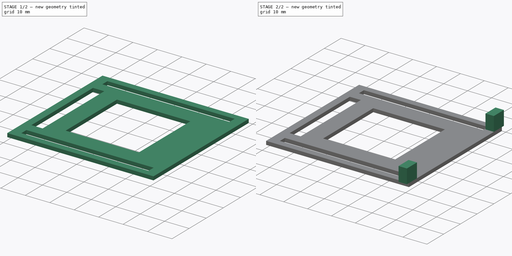
[diagram: build sequence overview — one tinted view per stage of 2, left to right]
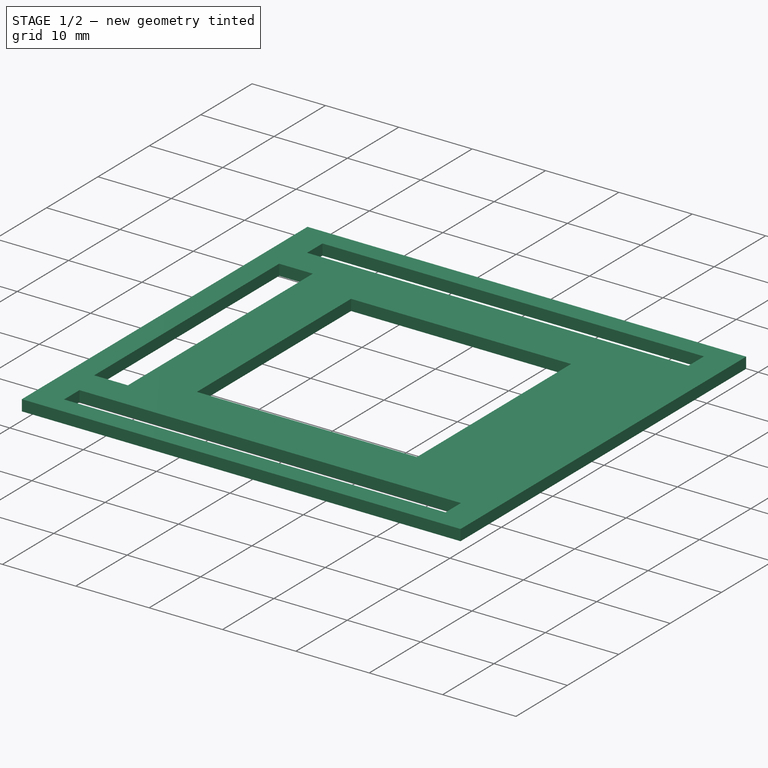
[diagram: stage 1 of 2 — iso view after this stage's code; geometry added in this stage tinted green]
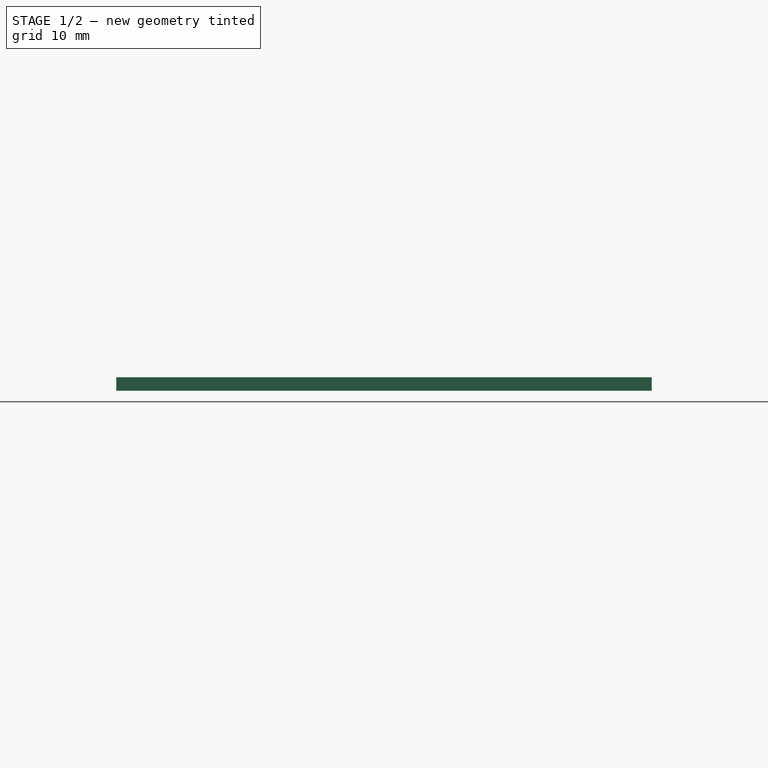
[diagram: stage 1 of 2 — front view after this stage's code; geometry added in this stage tinted green]
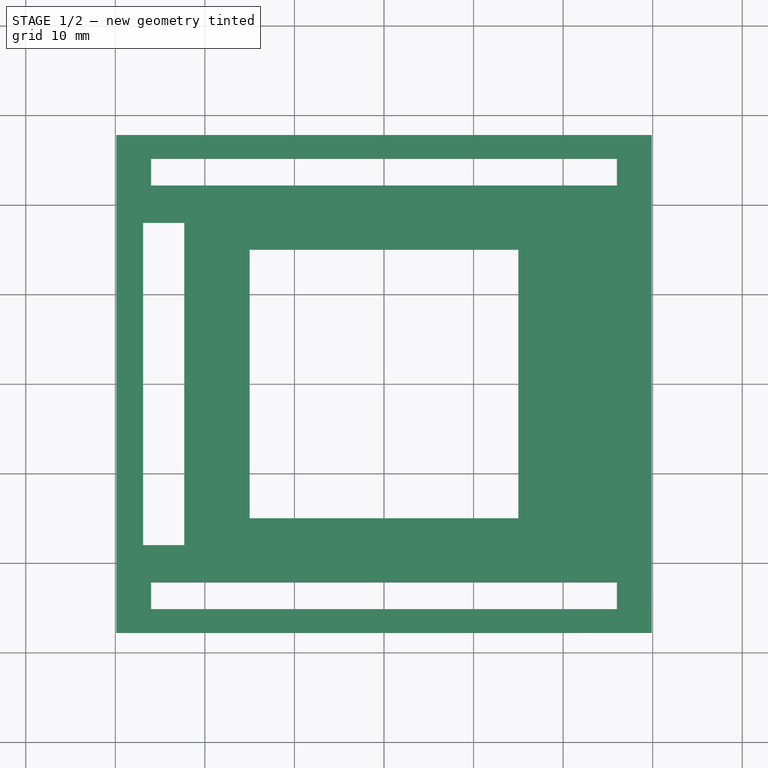
[diagram: stage 1 of 2 — top view after this stage's code; geometry added in this stage tinted green]
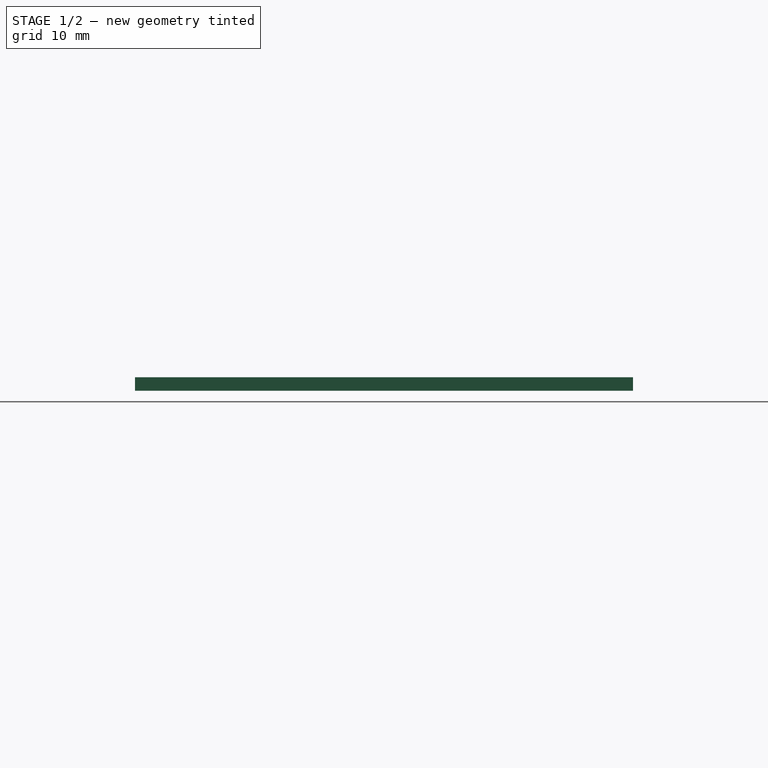
[diagram: stage 1 of 2 — right view after this stage's code; geometry added in this stage tinted green]
FCSTD DOCUMENT  (FreeCAD 0.16R4928 (Git))
Label: weather_station_holder_vetical
License: CreativeCommons Attribution-ShareAlike
LicenseURL: http://creativecommons.org/licenses/by-sa/4.0/
objects: Sketcher::SketchObject×4, PartDesign::Pad×2, App::MeasureDistance×2, PartDesign::Pocket×2
note: 12 computed .brp shape members not serialized (recipe doc carries the construction recipe); baked Part::Feature solids carry a one-line shape summary decoded from their .brp

FEATURE [Sketcher::SketchObject] Sketch
  Placement = pos=(0,0,0) rot=(-1,0,0;4.71239rad)
  sketch-geometry (4):
    g0: LineSegment StartX=-29.9 StartY=1.5 StartZ=0 EndX=29.9 EndY=1.5 EndZ=0
    g1: LineSegment StartX=29.9 StartY=1.5 StartZ=0 EndX=29.9 EndY=0 EndZ=0
    g2: LineSegment StartX=29.9 StartY=0 StartZ=0 EndX=-29.9 EndY=0 EndZ=0
    g3: LineSegment StartX=-29.9 StartY=0 StartZ=0 EndX=-29.9 EndY=1.5 EndZ=0
  constraints (11):
    c: Coincident(g0,g1)
    c: Coincident(g1,g2)
    c: Coincident(g2,g3)
    c: Coincident(g3,g0)
    c: Horizontal(g0)
    c: Horizontal(g2)
    c: Vertical(g1)
    c: Vertical(g3)
    c: Symmetric(g1,g2,g-1)
    c: DistanceX(g2) = -59.8
    c: DistanceY(g1) = -1.5
FEATURE [PartDesign::Pad] Pad
  Length = 55.6
  Length2 = 100
  Midplane = true
  Placement = pos=(0,0,0) rot=(-1,0,0;4.71239rad)
  Sketch = -> Sketch
  Type = 0
FEATURE [App::MeasureDistance] Distance  label="Distance: 59.800"
  Distance = 59.8
  P1 = (-29.9,-27.8,-3.31402e-06)
  P2 = (29.9,-27.8,-3.31402e-06)
FEATURE [App::MeasureDistance] Distance001  label="Distance: 55.600"
  Distance = 55.6
  P1 = (29.9,-27.8,0.0276028)
  P2 = (29.9,27.8,3.31402e-06)
FEATURE [Sketcher::SketchObject] Sketch002  label="Sketch001"
  ExternalGeometry = -> [Pad]
  Placement = pos=(0,0,1.5) rot=(0,0,1;3.14159rad)
  Support = -> Pad [Face1]
  sketch-geometry (16):
    g0: LineSegment StartX=-26 StartY=25.15 StartZ=0 EndX=26 EndY=25.15 EndZ=0
    g1: LineSegment StartX=26 StartY=25.15 StartZ=0 EndX=26 EndY=22.15 EndZ=0
    g2: LineSegment StartX=26 StartY=22.15 StartZ=0 EndX=-26 EndY=22.15 EndZ=0
    g3: LineSegment StartX=-26 StartY=22.15 StartZ=0 EndX=-26 EndY=25.15 EndZ=0
    g4: LineSegment StartX=-26 StartY=-22.15 StartZ=0 EndX=26 EndY=-22.15 EndZ=0
    g5: LineSegment StartX=26 StartY=-22.15 StartZ=0 EndX=26 EndY=-25.15 EndZ=0
    g6: LineSegment StartX=26 StartY=-25.15 StartZ=0 EndX=-26 EndY=-25.15 EndZ=0
    g7: LineSegment StartX=-26 StartY=-25.15 StartZ=0 EndX=-26 EndY=-22.15 EndZ=0
    g8: LineSegment StartX=-15 StartY=15 StartZ=0 EndX=15 EndY=15 EndZ=0
    g9: LineSegment StartX=15 StartY=15 StartZ=0 EndX=15 EndY=-15 EndZ=0
    g10: LineSegment StartX=15 StartY=-15 StartZ=0 EndX=-15 EndY=-15 EndZ=0
    g11: LineSegment StartX=-15 StartY=-15 StartZ=0 EndX=-15 EndY=15 EndZ=0
    g12: LineSegment StartX=22.3 StartY=18 StartZ=0 EndX=26.9 EndY=18 EndZ=0
    g13: LineSegment StartX=26.9 StartY=18 StartZ=0 EndX=26.9 EndY=-18 EndZ=0
    g14: LineSegment StartX=26.9 StartY=-18 StartZ=0 EndX=22.3 EndY=-18 EndZ=0
    g15: LineSegment StartX=22.3 StartY=-18 StartZ=0 EndX=22.3 EndY=18 EndZ=0
  constraints (47):
    c: Coincident(g0,g1)
    c: Coincident(g1,g2)
    c: Coincident(g2,g3)
    c: Coincident(g3,g0)
    c: Horizontal(g0)
    c: Horizontal(g2)
    c: Vertical(g1)
    c: Vertical(g3)
    c: Coincident(g4,g5)
    c: Coincident(g5,g6)
    c: Coincident(g6,g7)
    c: Coincident(g7,g4)
    c: Horizontal(g4)
    c: Horizontal(g6)
    c: Vertical(g5)
    c: Vertical(g7)
    c: Equal(g3,g7)
    c: Symmetric(g0,g0,g-2)
    c: Symmetric(g6,g5,g-2)
    c: DistanceX(g0) = 52
    c: Equal(g0,g6)
    c: DistanceY(g0,g-3) = 2.65
    c: DistanceY(g3) = 3
    c: DistanceY(g6,g-3) = -2.65
    c: Coincident(g8,g9)
    c: Coincident(g9,g10)
    c: Coincident(g10,g11)
    c: Coincident(g11,g8)
    c: Horizontal(g8)
    c: Horizontal(g10)
    c: Vertical(g9)
    c: Vertical(g11)
    c: Symmetric(g10,g8,g-1)
    c: DistanceY(g9) = -30
    c: Equal(g8,g9)
    c: Coincident(g12,g13)
    c: Coincident(g13,g14)
    c: Coincident(g14,g15)
    c: Coincident(g15,g12)
    c: Horizontal(g12)
    c: Horizontal(g14)
    c: Vertical(g13)
    c: Vertical(g15)
    c: Symmetric(g12,g13,g-1)
    c: DistanceX(g12) = 4.6
    c: DistanceX(g12,g-4) = 3
    c: DistanceY(g15) = 36
FEATURE [PartDesign::Pocket] Pocket
  Length = 5
  Placement = pos=(0,0,0) rot=(-1,0,0;4.71239rad)
  Sketch = -> Sketch002
  Type = 0
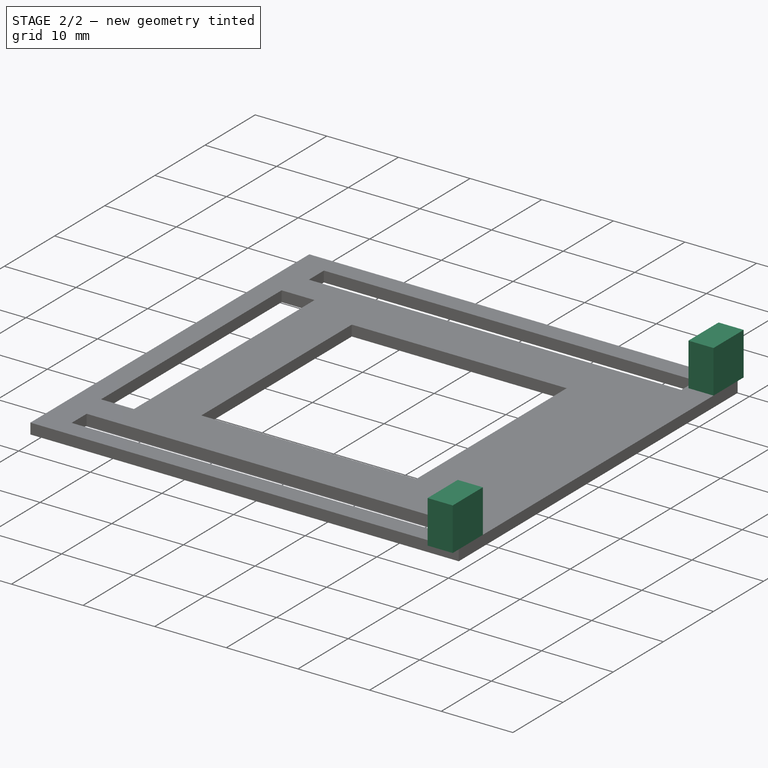
[diagram: stage 2 of 2 — iso view after this stage's code; geometry added in this stage tinted green]
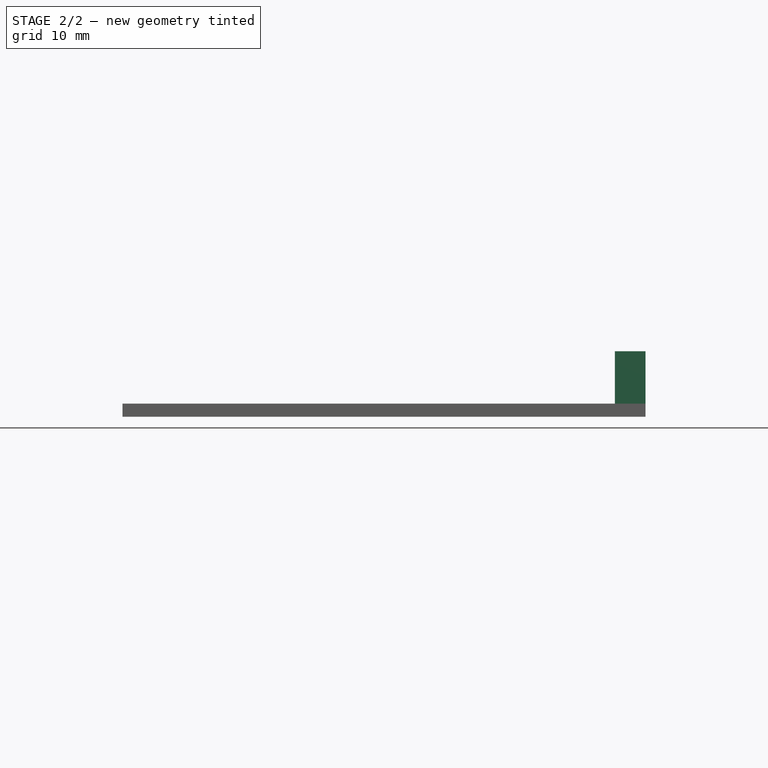
[diagram: stage 2 of 2 — front view after this stage's code; geometry added in this stage tinted green]
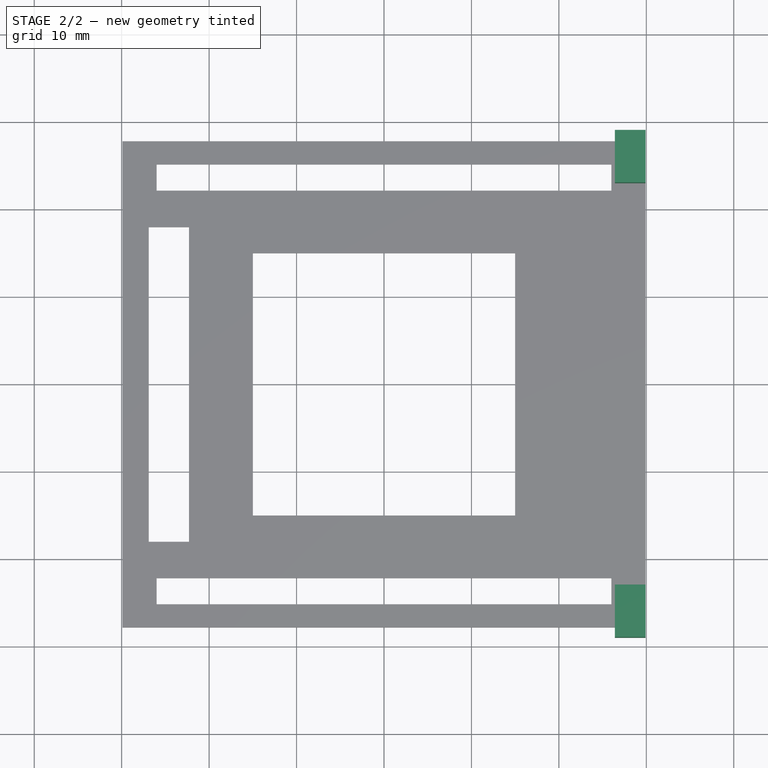
[diagram: stage 2 of 2 — top view after this stage's code; geometry added in this stage tinted green]
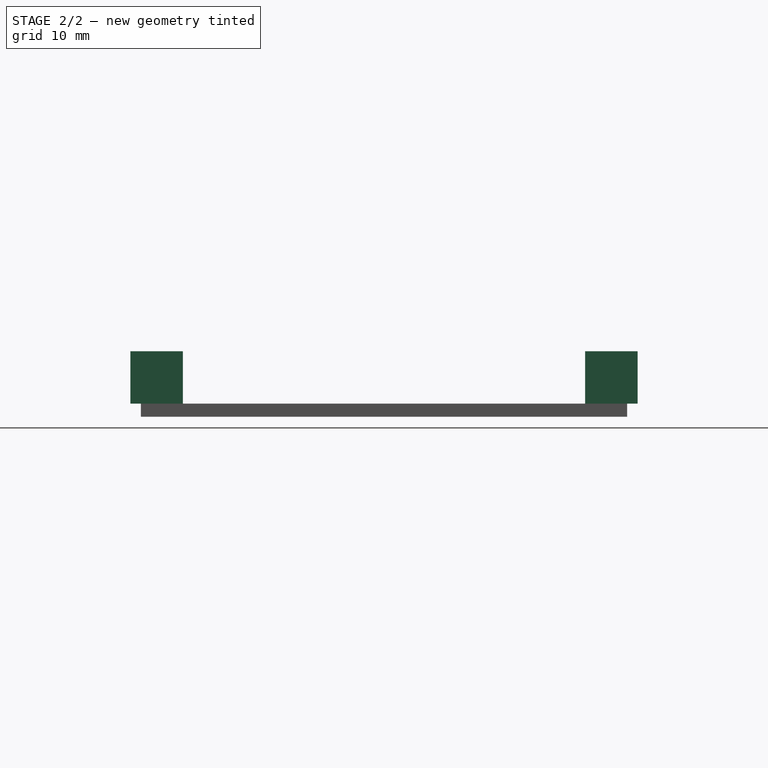
[diagram: stage 2 of 2 — right view after this stage's code; geometry added in this stage tinted green]
FEATURE [Sketcher::SketchObject] Sketch003
  ExternalGeometry = -> [Pocket]
  Placement = pos=(0,0,1.5) rot=(0,0,1;3.14159rad)
  Support = -> Pocket [Face1]
  sketch-geometry (8):
    g0: LineSegment StartX=-29.9 StartY=29 StartZ=0 EndX=-26.4 EndY=29 EndZ=0
    g1: LineSegment StartX=-26.4 StartY=29 StartZ=0 EndX=-26.4 EndY=23 EndZ=0
    g2: LineSegment StartX=-26.4 StartY=23 StartZ=0 EndX=-29.9 EndY=23 EndZ=0
    g3: LineSegment StartX=-29.9 StartY=23 StartZ=0 EndX=-29.9 EndY=29 EndZ=0
    g4: LineSegment StartX=-29.9 StartY=-23 StartZ=0 EndX=-26.4 EndY=-23 EndZ=0
    g5: LineSegment StartX=-26.4 StartY=-23 StartZ=0 EndX=-26.4 EndY=-29 EndZ=0
    g6: LineSegment StartX=-26.4 StartY=-29 StartZ=0 EndX=-29.9 EndY=-29 EndZ=0
    g7: LineSegment StartX=-29.9 StartY=-29 StartZ=0 EndX=-29.9 EndY=-23 EndZ=0
  constraints (23):
    c: Coincident(g0,g1)
    c: Coincident(g1,g2)
    c: Coincident(g2,g3)
    c: Coincident(g3,g0)
    c: Horizontal(g0)
    c: Horizontal(g2)
    c: Vertical(g1)
    c: Vertical(g3)
    c: Coincident(g4,g5)
    c: Coincident(g5,g6)
    c: Coincident(g6,g7)
    c: Coincident(g7,g4)
    c: Horizontal(g4)
    c: Horizontal(g6)
    c: Vertical(g5)
    c: Vertical(g7)
    c: Equal(g1,g5)
    c: Equal(g2,g4)
    c: DistanceX(g0) = 3.5
    c: DistanceY(g5) = -6
    c: Symmetric(g2,g4,g-1)
    c: PointOnObject(g2,g-3)
    c: DistanceY(g2) = 23
FEATURE [PartDesign::Pad] Pad001
  Length = 6
  Length2 = 100
  Placement = pos=(0,0,0) rot=(-1,0,0;4.71239rad)
  Sketch = -> Sketch003
  Type = 0
FEATURE [Sketcher::SketchObject] Sketch004
  ExternalGeometry = -> [Pad001]
  Placement = pos=(-26,0,0) rot=(0.707107,0,0.707107;3.14159rad)
  Support = -> Pad001 [Face21]
  sketch-geometry (2):
    g0: Circle CenterX=-4.5 CenterY=-25.5 CenterZ=0 NormalX=0 NormalY=0 NormalZ=1 Radius=1.75
    g1: Circle CenterX=-4.5 CenterY=25.5 CenterZ=0 NormalX=0 NormalY=0 NormalZ=1 Radius=1.75
  constraints (5):
    c: Symmetric(g0,g1,g-1)
    c: Equal(g1,g0)
    c: DistanceY(g1,g0) = -51
    c: DistanceX(g1) = -4.5
    c: Radius(g1) = 1.75
FEATURE [PartDesign::Pocket] Pocket001
  Length = 5
  Placement = pos=(0,0,0) rot=(-1,0,0;4.71239rad)
  Sketch = -> Sketch004
  Type = 0
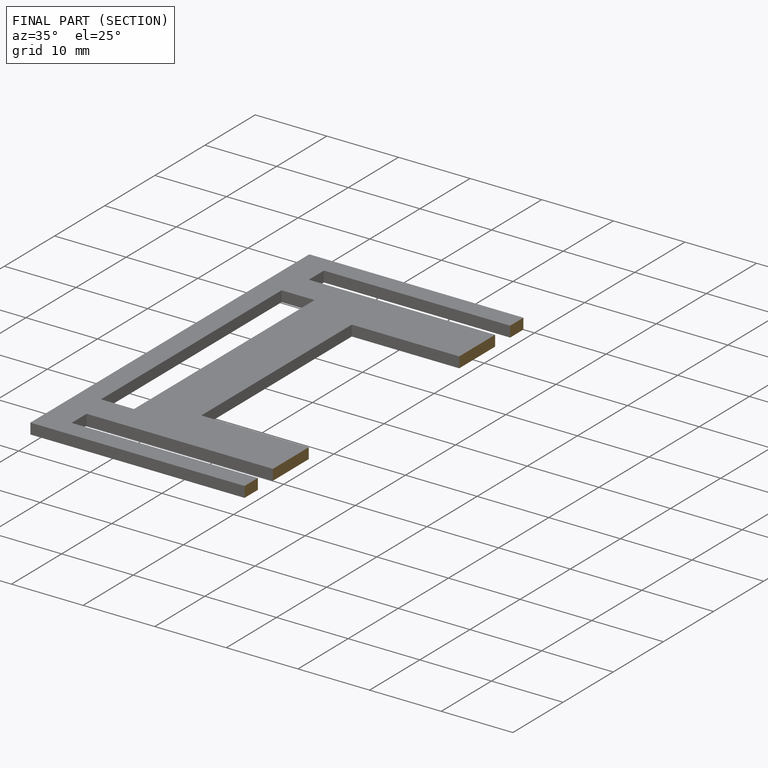
[diagram: finished part — half-section view (interior)]
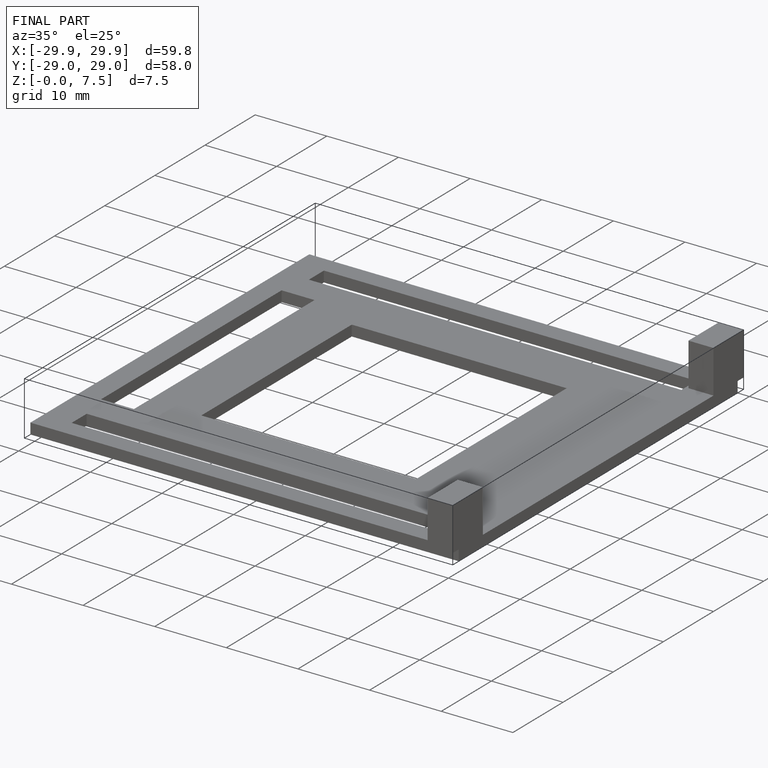
[diagram: finished part — iso view with bounding-box wireframe]
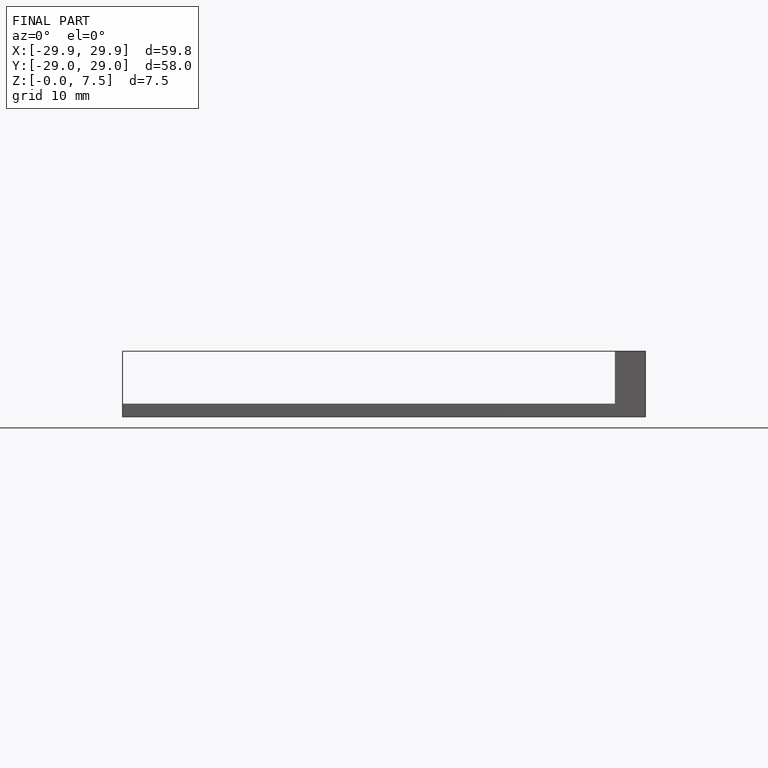
[diagram: finished part — front view with bounding-box wireframe]
